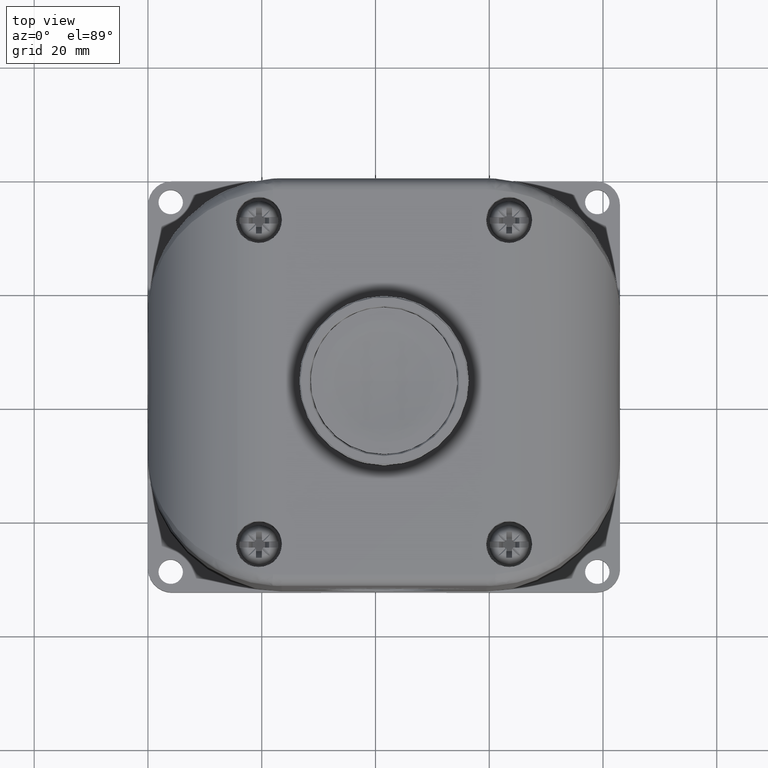
[diagram: clean part render]
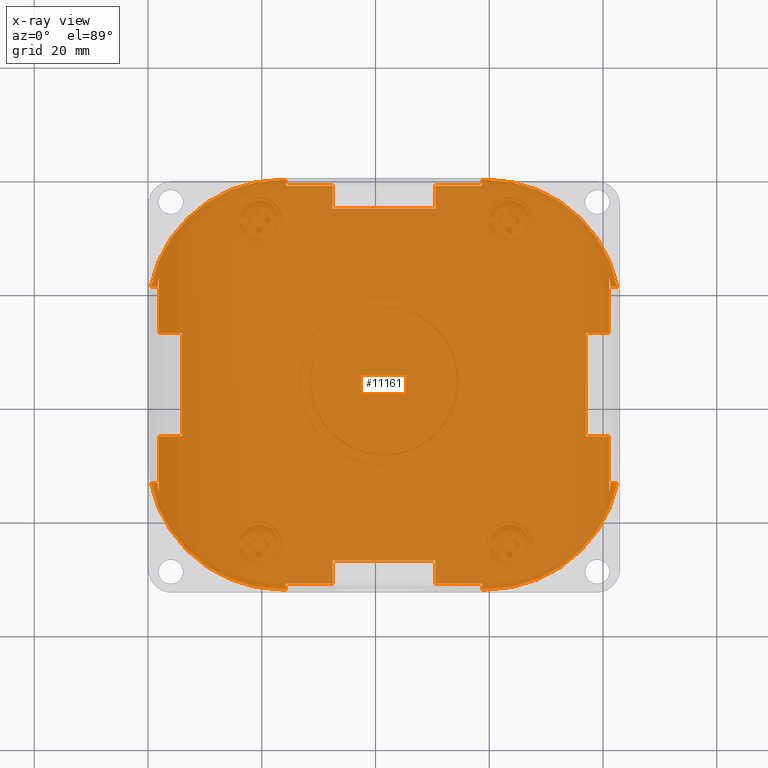
[diagram: x-ray — body ghosted, one internal face saturated and labeled with its STEP entity id]
A machine part, top view, then the same camera in x-ray: the body is ghosted and one INTERNAL B-rep face — a face not visible from any outside direction — is saturated and labeled: STEP entity #11161.
In plain terms, the highlighted planar face has unit normal (0, 0, 1).
Its self-contained STEP definition (entity closure, byte-faithful):
#6 = EDGE_CURVE ( 'NONE', #211, #3271, #20246, .T. ) ;
#34 = VERTEX_POINT ( 'NONE', #15999 ) ;
#104 = EDGE_CURVE ( 'NONE', #22496, #21848, #7697, .T. ) ;
#163 = DIRECTION ( 'NONE',  ( -1.000000000000000000, -0.000000000000000000, 0.000000000000000000 ) ) ;
#211 = VERTEX_POINT ( 'NONE', #21860 ) ;
#448 = DIRECTION ( 'NONE',  ( 1.000000000000000000, -0.000000000000000000, 2.265761274745220142E-15 ) ) ;
#501 = CARTESIAN_POINT ( 'NONE',  ( 1.276999395476385413, 0.008294289568677525037, 0.9960629921259841479 ) ) ;
#596 = VECTOR ( 'NONE', #12725, 39.37007874015748143 ) ;
#646 = ORIENTED_EDGE ( 'NONE', *, *, #22497, .F. ) ;
#675 = LINE ( 'NONE', #11176, #21525 ) ;
#690 = LINE ( 'NONE', #13894, #19188 ) ;
#722 = ORIENTED_EDGE ( 'NONE', *, *, #9861, .T. ) ;
#752 = DIRECTION ( 'NONE',  ( 0.000000000000000000, 1.000000000000000000, 0.000000000000000000 ) ) ;
#859 = ORIENTED_EDGE ( 'NONE', *, *, #1602, .F. ) ;
#886 = CARTESIAN_POINT ( 'NONE',  ( 2.313399968831224562, -2.404560126622364624, 0.9960629921259841479 ) ) ;
#926 = DIRECTION ( 'NONE',  ( 1.000000000000000000, 0.000000000000000000, -0.000000000000000000 ) ) ;
#1375 = VERTEX_POINT ( 'NONE', #13000 ) ;
#1533 = LINE ( 'NONE', #7021, #596 ) ;
#1602 = EDGE_CURVE ( 'NONE', #3912, #10276, #6064, .T. ) ;
#1618 = CARTESIAN_POINT ( 'NONE',  ( 3.191871686016665599, -0.7016700961253963253, 0.9960629921259841479 ) ) ;
#1721 = CARTESIAN_POINT ( 'NONE',  ( 3.200787401574803237, -1.423117759614849209, 0.9960629921259841479 ) ) ;
#1853 = DIRECTION ( 'NONE',  ( -1.000000000000000000, -0.000000000000000000, 0.000000000000000000 ) ) ;
#2110 = ORIENTED_EDGE ( 'NONE', *, *, #11650, .F. ) ;
#2194 = ORIENTED_EDGE ( 'NONE', *, *, #7425, .F. ) ;
#2196 = CARTESIAN_POINT ( 'NONE',  ( 0.01918108836124199357, -0.7435760585001599532, 0.9960629921259841479 ) ) ;
#2286 = CARTESIAN_POINT ( 'NONE',  ( 3.031496062992127261, -1.779976631854993441, 0.9960629921259841479 ) ) ;
#2308 = CARTESIAN_POINT ( 'NONE',  ( 2.342519685039369914, -0.005794924969179654842, 0.9960629921259841479 ) ) ;
#2485 = EDGE_CURVE ( 'NONE', #22482, #7369, #9775, .T. ) ;
#2628 = ORIENTED_EDGE ( 'NONE', *, *, #15426, .F. ) ;
#2669 = ORIENTED_EDGE ( 'NONE', *, *, #6150, .F. ) ;
#2905 = VECTOR ( 'NONE', #163, 39.37007874015748143 ) ;
#2968 = ORIENTED_EDGE ( 'NONE', *, *, #13101, .T. ) ;
#3053 = CARTESIAN_POINT ( 'NONE',  ( 3.200787401574803237, -1.423117759614849209, 0.9960629921259841479 ) ) ;
#3134 = VERTEX_POINT ( 'NONE', #5136 ) ;
#3216 = CARTESIAN_POINT ( 'NONE',  ( 1.990717139956684090, -0.2046138226069759147, 0.9960629921259841479 ) ) ;
#3271 = VERTEX_POINT ( 'NONE', #14789 ) ;
#3324 = DIRECTION ( 'NONE',  ( 7.417671482642760352E-31, -7.417671482642762103E-31, 1.000000000000000000 ) ) ;
#3371 = CARTESIAN_POINT ( 'NONE',  ( -0.05166161498367354693, -1.066258887374704756, 0.9960629921259841479 ) ) ;
#3380 = CARTESIAN_POINT ( 'NONE',  ( 2.342519685039369914, -1.915243743866817727, 0.9960629921259841479 ) ) ;
#3393 = VECTOR ( 'NONE', #5047, 39.37007874015748143 ) ;
#3494 = VERTEX_POINT ( 'NONE', #9751 ) ;
#3502 = CARTESIAN_POINT ( 'NONE',  ( 2.342519685039369914, -0.9309917753628805803, 0.9960629921259841479 ) ) ;
#3587 = VERTEX_POINT ( 'NONE', #11775 ) ;
#3826 = CARTESIAN_POINT ( 'NONE',  ( 2.020044116535452350, -0.04564375819330684231, 0.9960629921259841479 ) ) ;
#3852 = ORIENTED_EDGE ( 'NONE', *, *, #104, .F. ) ;
#3912 = VERTEX_POINT ( 'NONE', #11518 ) ;
#3913 = CARTESIAN_POINT ( 'NONE',  ( 0.07584484941640488864, -1.066258887374704756, 0.9960629921259840369 ) ) ;
#3933 = LINE ( 'NONE', #14764, #13901 ) ;
#4067 = ORIENTED_EDGE ( 'NONE', *, *, #8771, .F. ) ;
#4170 = ORIENTED_EDGE ( 'NONE', *, *, #21313, .F. ) ;
#4252 = EDGE_CURVE ( 'NONE', #10276, #6736, #10365, .T. ) ;
#4335 = CARTESIAN_POINT ( 'NONE',  ( 3.191871686026317878, -2.166819274866170986, 0.9960629921260411024 ) ) ;
#4414 = VERTEX_POINT ( 'NONE', #7395 ) ;
#4525 = CARTESIAN_POINT ( 'NONE',  ( 0.9543165666018463833, -2.840440594260518647, 0.9960629921259841479 ) ) ;
#4634 = CARTESIAN_POINT ( 'NONE',  ( 3.248535447071828397, -0.7435760585001600642, 0.9960629921259841479 ) ) ;
#4681 = CARTESIAN_POINT ( 'NONE',  ( 3.197780527425256203, -0.6993652157853464946, 0.9960629921259841479 ) ) ;
#4697 = LINE ( 'NONE', #21153, #7950 ) ;
#4716 = DIRECTION ( 'NONE',  ( 5.276725402210818083E-16, -1.000000000000000000, 0.000000000000000000 ) ) ;
#4739 = DIRECTION ( 'NONE',  ( -1.000000000000000000, 0.000000000000000000, -2.265761274745220142E-15 ) ) ;
#4834 = FACE_OUTER_BOUND ( 'NONE', #22210, .T. ) ;
#4890 = VECTOR ( 'NONE', #21119, 39.37007874015748143 ) ;
#4941 = EDGE_CURVE ( 'NONE', #19081, #4414, #4697, .T. ) ;
#4953 = CARTESIAN_POINT ( 'NONE',  ( 2.313399968831224562, -0.005794924969179654842, 0.9960629921259841479 ) ) ;
#5047 = DIRECTION ( 'NONE',  ( -0.000000000000000000, -1.000000000000000000, 0.000000000000000000 ) ) ;
#5105 = LINE ( 'NONE', #19884, #17821 ) ;
#5110 = LINE ( 'NONE', #17191, #5915 ) ;
#5136 = CARTESIAN_POINT ( 'NONE',  ( 1.990717139956684534, -2.800648200788083741, 0.9960629921259841479 ) ) ;
#5148 = B_SPLINE_CURVE_WITH_KNOTS ( 'NONE', 3,
 ( #20663, #9706, #18406, #4335 ),
 .UNSPECIFIED., .F., .F.,
 ( 4, 4 ),
 ( 6.938893903907228378E-18, 0.001584340472095101347 ),
 .UNSPECIFIED. ) ;
#5197 = EDGE_CURVE ( 'NONE', #7867, #11774, #8670, .T. ) ;
#5201 = CIRCLE ( 'NONE', #6354, 0.9251968503937008093 ) ;
#5292 = ORIENTED_EDGE ( 'NONE', *, *, #8994, .F. ) ;
#5369 = DIRECTION ( 'NONE',  ( -0.000000000000000000, -0.000000000000000000, 1.000000000000000000 ) ) ;
#5421 = VERTEX_POINT ( 'NONE', #3913 ) ;
#5455 = ORIENTED_EDGE ( 'NONE', *, *, #12653, .T. ) ;
#5487 = B_SPLINE_CURVE_WITH_KNOTS ( 'NONE', 3,
 ( #17547, #4681, #17314, #8386 ),
 .UNSPECIFIED., .F., .F.,
 ( 4, 4 ),
 ( 6.938893903907228378E-18, 0.001584340929084234080 ),
 .UNSPECIFIED. ) ;
#5488 = VERTEX_POINT ( 'NONE', #16647 ) ;
#5491 = DIRECTION ( 'NONE',  ( -1.000000000000000000, -1.771632486103973270E-15, 0.000000000000000000 ) ) ;
#5497 = CARTESIAN_POINT ( 'NONE',  ( 0.06692913385826800010, -1.423117759614849209, 0.9960629921259841479 ) ) ;
#5656 = EDGE_CURVE ( 'NONE', #21848, #20176, #10199, .T. ) ;
#5773 = ORIENTED_EDGE ( 'NONE', *, *, #7992, .F. ) ;
#5915 = VECTOR ( 'NONE', #8696, 39.37007874015748143 ) ;
#6064 = CIRCLE ( 'NONE', #20516, 0.9251968503937009203 ) ;
#6150 = EDGE_CURVE ( 'NONE', #10801, #8170, #15897, .T. ) ;
#6188 = LINE ( 'NONE', #9752, #15939 ) ;
#6332 = VERTEX_POINT ( 'NONE', #2196 ) ;
#6353 = CARTESIAN_POINT ( 'NONE',  ( 3.267716535433071279, -2.102659460729538132, 0.9960629921259841479 ) ) ;
#6354 = AXIS2_PLACEMENT_3D ( 'NONE', #17988, #5369, #5491 ) ;
#6384 = VECTOR ( 'NONE', #4716, 39.37007874015748143 ) ;
#6454 = DIRECTION ( 'NONE',  ( 0.000000000000000000, -1.000000000000000000, 0.000000000000000000 ) ) ;
#6465 = LINE ( 'NONE', #13712, #8932 ) ;
#6512 = VERTEX_POINT ( 'NONE', #8149 ) ;
#6528 = PLANE ( 'NONE',  #20345 ) ;
#6593 = LINE ( 'NONE', #11940, #14269 ) ;
#6668 = VERTEX_POINT ( 'NONE', #2286 ) ;
#6718 = LINE ( 'NONE', #886, #17954 ) ;
#6736 = VERTEX_POINT ( 'NONE', #4525 ) ;
#6864 = CARTESIAN_POINT ( 'NONE',  ( 1.276999395476385857, -0.2046138226069763311, 0.9960629921259841479 ) ) ;
#6888 = CARTESIAN_POINT ( 'NONE',  ( 2.020411243321577732, -2.800643007057055822, 0.9960629921259841479 ) ) ;
#7021 = CARTESIAN_POINT ( 'NONE',  ( 1.276999395476386301, -2.854529808798376589, 0.9960629921259841479 ) ) ;
#7037 = ORIENTED_EDGE ( 'NONE', *, *, #19399, .F. ) ;
#7074 = LINE ( 'NONE', #3371, #15612 ) ;
#7308 = EDGE_CURVE ( 'NONE', #8170, #18192, #5148, .T. ) ;
#7369 = VERTEX_POINT ( 'NONE', #19217 ) ;
#7395 = CARTESIAN_POINT ( 'NONE',  ( 1.990717139956683646, -0.04564375819330684231, 0.9960629921259841479 ) ) ;
#7425 = EDGE_CURVE ( 'NONE', #20176, #12188, #6718, .T. ) ;
#7508 = VECTOR ( 'NONE', #22300, 39.37007874015748143 ) ;
#7697 = CIRCLE ( 'NONE', #20992, 0.9251968503937011423 ) ;
#7867 = VERTEX_POINT ( 'NONE', #23377 ) ;
#7887 = ORIENTED_EDGE ( 'NONE', *, *, #16052, .F. ) ;
#7913 = VERTEX_POINT ( 'NONE', #11330 ) ;
#7918 = ORIENTED_EDGE ( 'NONE', *, *, #9430, .T. ) ;
#7950 = VECTOR ( 'NONE', #10194, 39.37007874015748143 ) ;
#7992 = EDGE_CURVE ( 'NONE', #18147, #3494, #20013, .T. ) ;
#8113 = CARTESIAN_POINT ( 'NONE',  ( 3.200787401574803237, -2.102659460729538132, 0.9960629921259841479 ) ) ;
#8149 = CARTESIAN_POINT ( 'NONE',  ( 0.06692913385826800010, -0.7435760585001600642, 0.9960629921259841479 ) ) ;
#8170 = VERTEX_POINT ( 'NONE', #13196 ) ;
#8206 = VECTOR ( 'NONE', #21587, 39.37007874015748143 ) ;
#8220 = VECTOR ( 'NONE', #10039, 39.37007874015748143 ) ;
#8386 = CARTESIAN_POINT ( 'NONE',  ( 3.200787401574802793, -0.7409101436614397018, 0.9960629921259841479 ) ) ;
#8599 = EDGE_CURVE ( 'NONE', #4414, #12188, #16822, .T. ) ;
#8603 = CARTESIAN_POINT ( 'NONE',  ( 2.625236719564798094, -0.2046138226069755817, 0.9960629921259841479 ) ) ;
#8670 = LINE ( 'NONE', #6888, #11745 ) ;
#8695 = VECTOR ( 'NONE', #6454, 39.37007874015748143 ) ;
#8696 = DIRECTION ( 'NONE',  ( -0.000000000000000000, -1.000000000000000000, -0.000000000000000000 ) ) ;
#8750 = VERTEX_POINT ( 'NONE', #20756 ) ;
#8771 = EDGE_CURVE ( 'NONE', #18926, #211, #6465, .T. ) ;
#8932 = VECTOR ( 'NONE', #13943, 39.37007874015748143 ) ;
#8951 = EDGE_CURVE ( 'NONE', #34, #15988, #19366, .T. ) ;
#8955 = ORIENTED_EDGE ( 'NONE', *, *, #7308, .F. ) ;
#8980 = LINE ( 'NONE', #16116, #2905 ) ;
#8994 = EDGE_CURVE ( 'NONE', #9803, #9812, #21892, .T. ) ;
#9116 = VECTOR ( 'NONE', #4739, 39.37007874015748143 ) ;
#9174 = CARTESIAN_POINT ( 'NONE',  ( 0.06993590453620271430, -0.6993656175388723861, 0.9960629921259841479 ) ) ;
#9289 = CARTESIAN_POINT ( 'NONE',  ( 0.9543165666018463833, -2.800829475357971443, 0.9960629921259840369 ) ) ;
#9430 = EDGE_CURVE ( 'NONE', #5488, #6512, #20021, .T. ) ;
#9602 = CARTESIAN_POINT ( 'NONE',  ( 1.276999395476385413, -0.04564375819330684231, 0.9960629921259841479 ) ) ;
#9618 = CARTESIAN_POINT ( 'NONE',  ( 2.313399968831224562, -0.04564375819330684231, 0.9960629921259843700 ) ) ;
#9706 = CARTESIAN_POINT ( 'NONE',  ( 3.200787414731199654, -2.126131056599460667, 0.9960629921259841479 ) ) ;
#9746 = DIRECTION ( 'NONE',  ( 0.000000000000000000, 0.000000000000000000, 1.000000000000000000 ) ) ;
#9751 = CARTESIAN_POINT ( 'NONE',  ( 0.06692913385826800010, -2.102659460729538132, 0.9960629921259841479 ) ) ;
#9752 = CARTESIAN_POINT ( 'NONE',  ( 2.625236719564799426, -2.641621696622722837, 0.9960629921259841479 ) ) ;
#9775 = LINE ( 'NONE', #18826, #10615 ) ;
#9803 = VERTEX_POINT ( 'NONE', #21316 ) ;
#9812 = VERTEX_POINT ( 'NONE', #14514 ) ;
#9861 = EDGE_CURVE ( 'NONE', #7913, #7867, #1533, .T. ) ;
#10039 = DIRECTION ( 'NONE',  ( -1.000000000000000000, -0.000000000000000000, -0.000000000000000000 ) ) ;
#10107 = DIRECTION ( 'NONE',  ( 1.000000000000000000, -0.000000000000000000, -2.265761274745220142E-15 ) ) ;
#10134 = CARTESIAN_POINT ( 'NONE',  ( 0.07584489310691214237, -2.166819422409330897, 0.9960629919313432890 ) ) ;
#10194 = DIRECTION ( 'NONE',  ( -5.276725402210818083E-16, 1.000000000000000000, -0.000000000000000000 ) ) ;
#10199 = LINE ( 'NONE', #17452, #20875 ) ;
#10211 = CARTESIAN_POINT ( 'NONE',  ( 2.625236719564799426, -2.404560126622364624, 0.9960629921259841479 ) ) ;
#10276 = VERTEX_POINT ( 'NONE', #23417 ) ;
#10335 = EDGE_CURVE ( 'NONE', #5421, #8750, #13490, .T. ) ;
#10365 = LINE ( 'NONE', #17272, #12500 ) ;
#10372 = ORIENTED_EDGE ( 'NONE', *, *, #4252, .F. ) ;
#10383 = EDGE_CURVE ( 'NONE', #3271, #10801, #22680, .T. ) ;
#10459 = DIRECTION ( 'NONE',  ( -0.9999999847036268319, -0.0001749078221056235376, 0.000000000000000000 ) ) ;
#10588 = DIRECTION ( 'NONE',  ( 8.858162430519865364E-16, 1.000000000000000000, 0.000000000000000000 ) ) ;
#10615 = VECTOR ( 'NONE', #22880, 39.37007874015748143 ) ;
#10627 = VECTOR ( 'NONE', #10107, 39.37007874015748143 ) ;
#10726 = VECTOR ( 'NONE', #18577, 39.37007874015748143 ) ;
#10801 = VERTEX_POINT ( 'NONE', #8113 ) ;
#10844 = DIRECTION ( 'NONE',  ( -0.000000000000000000, 1.000000000000000000, -0.000000000000000000 ) ) ;
#10964 = CARTESIAN_POINT ( 'NONE',  ( 0.06692913385685726746, -0.7409102796260188528, 0.9960629919539645272 ) ) ;
#11100 = EDGE_CURVE ( 'NONE', #15988, #22496, #690, .T. ) ;
#11108 = CARTESIAN_POINT ( 'NONE',  ( 0.9543165666018463833, -0.04564375819330684231, 0.9960629921259843700 ) ) ;
#11161 = ADVANCED_FACE ( 'NONE', ( #4834 ), #6528, .F. ) ;
#11176 = CARTESIAN_POINT ( 'NONE',  ( 3.319378150416744777, -1.779976631854993663, 0.9960629921259841479 ) ) ;
#11209 = DIRECTION ( 'NONE',  ( -0.000000000000000000, 1.000000000000000000, 0.000000000000000000 ) ) ;
#11330 = CARTESIAN_POINT ( 'NONE',  ( 1.276999395476386301, -2.641621696622722837, 0.9960629921259841479 ) ) ;
#11450 = LINE ( 'NONE', #3826, #7508 ) ;
#11518 = CARTESIAN_POINT ( 'NONE',  ( 0.01918108836124199357, -2.102659460729538132, 0.9960629921259841479 ) ) ;
#11571 = CARTESIAN_POINT ( 'NONE',  ( 3.319378150416744777, -1.066258887374704756, 0.9960629921259841479 ) ) ;
#11635 = ORIENTED_EDGE ( 'NONE', *, *, #21900, .T. ) ;
#11650 = EDGE_CURVE ( 'NONE', #22103, #18926, #5110, .T. ) ;
#11677 = CARTESIAN_POINT ( 'NONE',  ( 3.191871642326158831, -0.6794160968203676321, 0.9960629919313434000 ) ) ;
#11684 = ORIENTED_EDGE ( 'NONE', *, *, #5656, .F. ) ;
#11701 = DIRECTION ( 'NONE',  ( -0.000000000000000000, 1.000000000000000000, -0.000000000000000000 ) ) ;
#11745 = VECTOR ( 'NONE', #10459, 39.37007874015748143 ) ;
#11774 = VERTEX_POINT ( 'NONE', #9289 ) ;
#11775 = CARTESIAN_POINT ( 'NONE',  ( 3.191871686016665599, -1.779976631854993663, 0.9960629921259840369 ) ) ;
#11940 = CARTESIAN_POINT ( 'NONE',  ( 0.07584484941640488864, -0.7016700961253963253, 0.9960629921259841479 ) ) ;
#12034 = CARTESIAN_POINT ( 'NONE',  ( 3.191871686016665599, -1.066258887374704978, 0.9960629921259841479 ) ) ;
#12036 = ORIENTED_EDGE ( 'NONE', *, *, #2485, .T. ) ;
#12188 = VERTEX_POINT ( 'NONE', #9618 ) ;
#12268 = CARTESIAN_POINT ( 'NONE',  ( 0.06993600800781483995, -2.146870303444351702, 0.9960629921259841479 ) ) ;
#12472 = ORIENTED_EDGE ( 'NONE', *, *, #19821, .T. ) ;
#12500 = VECTOR ( 'NONE', #13810, 39.37007874015748143 ) ;
#12577 = VECTOR ( 'NONE', #11701, 39.37007874015748143 ) ;
#12650 = LINE ( 'NONE', #20027, #19682 ) ;
#12653 = EDGE_CURVE ( 'NONE', #7369, #5421, #7074, .T. ) ;
#12725 = DIRECTION ( 'NONE',  ( 0.000000000000000000, -1.000000000000000000, 0.000000000000000000 ) ) ;
#12759 = EDGE_CURVE ( 'NONE', #3134, #19375, #13020, .T. ) ;
#12763 = ORIENTED_EDGE ( 'NONE', *, *, #17486, .F. ) ;
#12912 = ORIENTED_EDGE ( 'NONE', *, *, #10335, .T. ) ;
#13000 = CARTESIAN_POINT ( 'NONE',  ( 0.07584489310691214237, -2.166819422409330897, 0.9960629919313432890 ) ) ;
#13020 = LINE ( 'NONE', #13244, #12577 ) ;
#13093 = VERTEX_POINT ( 'NONE', #6864 ) ;
#13101 = EDGE_CURVE ( 'NONE', #16685, #22467, #17927, .T. ) ;
#13196 = CARTESIAN_POINT ( 'NONE',  ( 3.200787401576214553, -2.105325239603679233, 0.9960629919539645272 ) ) ;
#13244 = CARTESIAN_POINT ( 'NONE',  ( 1.990717139956684534, -2.854529808798376589, 0.9960629921259841479 ) ) ;
#13246 = DIRECTION ( 'NONE',  ( 1.000000000000000000, 0.000000000000000000, 0.000000000000000000 ) ) ;
#13490 = LINE ( 'NONE', #20766, #22682 ) ;
#13652 = DIRECTION ( 'NONE',  ( -1.000000000000000000, -0.000000000000000000, 0.000000000000000000 ) ) ;
#13712 = CARTESIAN_POINT ( 'NONE',  ( 2.625236719564799426, -2.840440594260518647, 0.9960629921259841479 ) ) ;
#13763 = CARTESIAN_POINT ( 'NONE',  ( 3.191871686026317878, -2.166819274866170986, 0.9960629921260411024 ) ) ;
#13810 = DIRECTION ( 'NONE',  ( 1.000000000000000000, 0.000000000000000000, -0.000000000000000000 ) ) ;
#13883 = VECTOR ( 'NONE', #1853, 39.37007874015748143 ) ;
#13894 = CARTESIAN_POINT ( 'NONE',  ( 3.267716535433071279, -0.7435760585001600642, 0.9960629921259841479 ) ) ;
#13901 = VECTOR ( 'NONE', #10844, 39.37007874015748143 ) ;
#13943 = DIRECTION ( 'NONE',  ( 1.000000000000000000, 0.000000000000000000, -0.000000000000000000 ) ) ;
#13958 = DIRECTION ( 'NONE',  ( 0.000000000000000000, 1.000000000000000000, 0.000000000000000000 ) ) ;
#13970 = DIRECTION ( 'NONE',  ( 0.000000000000000000, -1.000000000000000000, -0.000000000000000000 ) ) ;
#14111 = ORIENTED_EDGE ( 'NONE', *, *, #11100, .F. ) ;
#14269 = VECTOR ( 'NONE', #13958, 39.37007874015748143 ) ;
#14514 = CARTESIAN_POINT ( 'NONE',  ( 0.9251968503937001431, -0.005794924969179654842, 0.9960629921259841479 ) ) ;
#14584 = EDGE_CURVE ( 'NONE', #5488, #8750, #16480, .T. ) ;
#14644 = VECTOR ( 'NONE', #17944, 39.37007874015748143 ) ;
#14650 = CARTESIAN_POINT ( 'NONE',  ( 0.07584484940675272069, -0.6794162443635270998, 0.9960629921260411024 ) ) ;
#14764 = CARTESIAN_POINT ( 'NONE',  ( 0.9543165666018463833, -2.840440594260518647, 0.9960629921259840369 ) ) ;
#14789 = CARTESIAN_POINT ( 'NONE',  ( 3.248535447071828397, -2.102659460729538576, 0.9960629921259841479 ) ) ;
#15040 = CARTESIAN_POINT ( 'NONE',  ( 2.020044116535452350, -0.04564375819330684231, 0.9960629921259841479 ) ) ;
#15121 = ORIENTED_EDGE ( 'NONE', *, *, #22769, .T. ) ;
#15248 = LINE ( 'NONE', #11571, #9116 ) ;
#15343 = LINE ( 'NONE', #22747, #10627 ) ;
#15344 = ORIENTED_EDGE ( 'NONE', *, *, #8951, .F. ) ;
#15386 = ORIENTED_EDGE ( 'NONE', *, *, #10383, .F. ) ;
#15426 = EDGE_CURVE ( 'NONE', #21105, #9803, #20838, .T. ) ;
#15612 = VECTOR ( 'NONE', #21854, 39.37007874015748143 ) ;
#15740 = CARTESIAN_POINT ( 'NONE',  ( 3.031496062992127261, -1.066258887374705200, 0.9960629921259841479 ) ) ;
#15782 = VERTEX_POINT ( 'NONE', #15908 ) ;
#15897 = LINE ( 'NONE', #1721, #3393 ) ;
#15907 = DIRECTION ( 'NONE',  ( 0.000000000000000000, -1.000000000000000000, 0.000000000000000000 ) ) ;
#15908 = CARTESIAN_POINT ( 'NONE',  ( 0.07584484941640488864, -1.779976631854993663, 0.9960629921259841479 ) ) ;
#15939 = VECTOR ( 'NONE', #22058, 39.37007874015748143 ) ;
#15988 = VERTEX_POINT ( 'NONE', #19839 ) ;
#15999 = CARTESIAN_POINT ( 'NONE',  ( 3.200787401574802793, -0.7409101436614397018, 0.9960629921259841479 ) ) ;
#16052 = EDGE_CURVE ( 'NONE', #16685, #34, #5487, .T. ) ;
#16116 = CARTESIAN_POINT ( 'NONE',  ( 2.625236719564799426, -2.102659460729538132, 0.9960629921259841479 ) ) ;
#16267 = CARTESIAN_POINT ( 'NONE',  ( 2.625236719564799426, -0.005794924969179654842, 0.9960629921259841479 ) ) ;
#16340 = DIRECTION ( 'NONE',  ( -0.9999999847036268319, -0.0001749078221056235376, 0.000000000000000000 ) ) ;
#16480 = B_SPLINE_CURVE_WITH_KNOTS ( 'NONE', 3,
 ( #10964, #18219, #9174, #14650 ),
 .UNSPECIFIED., .F., .F.,
 ( 4, 4 ),
 ( 0.000000000000000000, 0.001584340472095098094 ),
 .UNSPECIFIED. ) ;
#16546 = DIRECTION ( 'NONE',  ( 0.000000000000000000, -1.000000000000000000, 0.000000000000000000 ) ) ;
#16647 = CARTESIAN_POINT ( 'NONE',  ( 0.06692913385685726746, -0.7409102796260188528, 0.9960629919539645272 ) ) ;
#16685 = VERTEX_POINT ( 'NONE', #11677 ) ;
#16754 = ORIENTED_EDGE ( 'NONE', *, *, #22542, .T. ) ;
#16792 = VERTEX_POINT ( 'NONE', #9602 ) ;
#16822 = LINE ( 'NONE', #15040, #22272 ) ;
#16901 = CARTESIAN_POINT ( 'NONE',  ( 0.9543165666018463833, -0.005794924969179654842, 0.9960629921259840369 ) ) ;
#17191 = CARTESIAN_POINT ( 'NONE',  ( 2.313399968831224562, -2.840440594260518647, 0.9960629921259841479 ) ) ;
#17226 = CARTESIAN_POINT ( 'NONE',  ( 0.06692913385826854133, -2.105325375568258828, 0.9960629921259841479 ) ) ;
#17272 = CARTESIAN_POINT ( 'NONE',  ( 2.625236719564799426, -2.840440594260518647, 0.9960629921259841479 ) ) ;
#17314 = CARTESIAN_POINT ( 'NONE',  ( 3.200787401577076086, -0.7201040539439121924, 0.9960629921259841479 ) ) ;
#17385 = CARTESIAN_POINT ( 'NONE',  ( 3.031496062992126372, -2.404560126622364624, 0.9960629921259841479 ) ) ;
#17452 = CARTESIAN_POINT ( 'NONE',  ( 2.625236719564799426, -0.005794924969179654842, 0.9960629921259841479 ) ) ;
#17471 = CARTESIAN_POINT ( 'NONE',  ( 0.000000000000000000, -0.7435760585001600642, 0.9960629921259841479 ) ) ;
#17486 = EDGE_CURVE ( 'NONE', #6736, #11774, #3933, .T. ) ;
#17547 = CARTESIAN_POINT ( 'NONE',  ( 3.191871642326158831, -0.6794160968203676321, 0.9960629919313434000 ) ) ;
#17577 = DIRECTION ( 'NONE',  ( -0.000000000000000000, -1.000000000000000000, 0.000000000000000000 ) ) ;
#17821 = VECTOR ( 'NONE', #16546, 39.37007874015748143 ) ;
#17886 = LINE ( 'NONE', #501, #6384 ) ;
#17927 = LINE ( 'NONE', #1618, #18272 ) ;
#17936 = EDGE_CURVE ( 'NONE', #6668, #3587, #675, .T. ) ;
#17944 = DIRECTION ( 'NONE',  ( 1.000000000000000000, -0.000000000000000000, -0.000000000000000000 ) ) ;
#17954 = VECTOR ( 'NONE', #13970, 39.37007874015748143 ) ;
#17974 = ORIENTED_EDGE ( 'NONE', *, *, #5197, .T. ) ;
#17988 = CARTESIAN_POINT ( 'NONE',  ( 0.9251968503937006982, -0.9309917753628805803, 0.9960629921259841479 ) ) ;
#18019 = DIRECTION ( 'NONE',  ( -0.000000000000000000, 0.000000000000000000, 1.000000000000000000 ) ) ;
#18031 = VECTOR ( 'NONE', #11209, 39.37007874015748143 ) ;
#18140 = DIRECTION ( 'NONE',  ( -1.000000000000000000, 0.000000000000000000, 0.000000000000000000 ) ) ;
#18147 = VERTEX_POINT ( 'NONE', #17226 ) ;
#18192 = VERTEX_POINT ( 'NONE', #13763 ) ;
#18219 = CARTESIAN_POINT ( 'NONE',  ( 0.06692912070187173601, -0.7201044626302380847, 0.9960629921259841479 ) ) ;
#18272 = VECTOR ( 'NONE', #15907, 39.37007874015748143 ) ;
#18348 = CARTESIAN_POINT ( 'NONE',  ( 0.06692913385826800010, -2.404560126622364624, 0.9960629921259841479 ) ) ;
#18406 = CARTESIAN_POINT ( 'NONE',  ( 3.197780630896867482, -2.146869901690826143, 0.9960629921259841479 ) ) ;
#18577 = DIRECTION ( 'NONE',  ( -0.000000000000000000, 1.000000000000000000, -0.000000000000000000 ) ) ;
#18736 = ORIENTED_EDGE ( 'NONE', *, *, #21069, .T. ) ;
#18826 = CARTESIAN_POINT ( 'NONE',  ( 0.2362204724409442680, -2.404560126622364624, 0.9960629921259841479 ) ) ;
#18926 = VERTEX_POINT ( 'NONE', #21094 ) ;
#18966 = ORIENTED_EDGE ( 'NONE', *, *, #8599, .T. ) ;
#19081 = VERTEX_POINT ( 'NONE', #3216 ) ;
#19177 = CARTESIAN_POINT ( 'NONE',  ( 0.06692913385826854133, -2.105325375568258828, 0.9960629921259841479 ) ) ;
#19188 = VECTOR ( 'NONE', #20821, 39.37007874015748143 ) ;
#19217 = CARTESIAN_POINT ( 'NONE',  ( 0.2362204724409442680, -1.066258887374705200, 0.9960629921259841479 ) ) ;
#19226 = ORIENTED_EDGE ( 'NONE', *, *, #14584, .F. ) ;
#19330 = CARTESIAN_POINT ( 'NONE',  ( 1.990717139956684534, -2.641621696622722837, 0.9960629921259841479 ) ) ;
#19366 = LINE ( 'NONE', #3053, #20730 ) ;
#19375 = VERTEX_POINT ( 'NONE', #19330 ) ;
#19380 = LINE ( 'NONE', #17471, #14644 ) ;
#19399 = EDGE_CURVE ( 'NONE', #3494, #3912, #8980, .T. ) ;
#19526 = ORIENTED_EDGE ( 'NONE', *, *, #19655, .F. ) ;
#19560 = ORIENTED_EDGE ( 'NONE', *, *, #22403, .T. ) ;
#19632 = CARTESIAN_POINT ( 'NONE',  ( 0.9251968503937006982, -1.915243743866817727, 0.9960629921259841479 ) ) ;
#19655 = EDGE_CURVE ( 'NONE', #9812, #6332, #5201, .T. ) ;
#19682 = VECTOR ( 'NONE', #16340, 39.37007874015748143 ) ;
#19787 = ORIENTED_EDGE ( 'NONE', *, *, #4941, .T. ) ;
#19821 = EDGE_CURVE ( 'NONE', #21105, #16792, #11450, .T. ) ;
#19839 = CARTESIAN_POINT ( 'NONE',  ( 3.200787401574803237, -0.7435760585001600642, 0.9960629921259841479 ) ) ;
#19884 = CARTESIAN_POINT ( 'NONE',  ( 3.191871686016665599, -0.7016700961253963253, 0.9960629921259841479 ) ) ;
#20011 = ORIENTED_EDGE ( 'NONE', *, *, #22883, .T. ) ;
#20013 = LINE ( 'NONE', #18348, #18031 ) ;
#20021 = LINE ( 'NONE', #5497, #8206 ) ;
#20027 = CARTESIAN_POINT ( 'NONE',  ( 2.020411243321577732, -2.800643007057055822, 0.9960629921259841479 ) ) ;
#20176 = VERTEX_POINT ( 'NONE', #4953 ) ;
#20246 = CIRCLE ( 'NONE', #20620, 0.9251968503937008093 ) ;
#20345 = AXIS2_PLACEMENT_3D ( 'NONE', #10211, #9746, #926 ) ;
#20433 = ORIENTED_EDGE ( 'NONE', *, *, #21138, .T. ) ;
#20516 = AXIS2_PLACEMENT_3D ( 'NONE', #19632, #3324, #10588 ) ;
#20560 = ORIENTED_EDGE ( 'NONE', *, *, #23074, .T. ) ;
#20620 = AXIS2_PLACEMENT_3D ( 'NONE', #3380, #23042, #18140 ) ;
#20663 = CARTESIAN_POINT ( 'NONE',  ( 3.200787401576214553, -2.105325239603679233, 0.9960629919539645272 ) ) ;
#20730 = VECTOR ( 'NONE', #17577, 39.37007874015748143 ) ;
#20756 = CARTESIAN_POINT ( 'NONE',  ( 0.07584484940675272069, -0.6794162443635270998, 0.9960629921260411024 ) ) ;
#20766 = CARTESIAN_POINT ( 'NONE',  ( 0.07584484941640488864, -0.7016700961253963253, 0.9960629921259841479 ) ) ;
#20821 = DIRECTION ( 'NONE',  ( 1.000000000000000000, -0.000000000000000000, -0.000000000000000000 ) ) ;
#20838 = LINE ( 'NONE', #16901, #10726 ) ;
#20857 = LINE ( 'NONE', #17385, #8695 ) ;
#20875 = VECTOR ( 'NONE', #13652, 39.37007874015748143 ) ;
#20883 = VERTEX_POINT ( 'NONE', #15740 ) ;
#20992 = AXIS2_PLACEMENT_3D ( 'NONE', #3502, #18019, #23533 ) ;
#21069 = EDGE_CURVE ( 'NONE', #22103, #3134, #12650, .T. ) ;
#21094 = CARTESIAN_POINT ( 'NONE',  ( 2.313399968831224562, -2.840440594260518647, 0.9960629921259841479 ) ) ;
#21105 = VERTEX_POINT ( 'NONE', #11108 ) ;
#21119 = DIRECTION ( 'NONE',  ( 1.000000000000000000, 5.276725402210818083E-16, -0.000000000000000000 ) ) ;
#21138 = EDGE_CURVE ( 'NONE', #16792, #13093, #17886, .T. ) ;
#21146 = ORIENTED_EDGE ( 'NONE', *, *, #23304, .T. ) ;
#21153 = CARTESIAN_POINT ( 'NONE',  ( 1.990717139956683646, 0.008294289568677797389, 0.9960629921259841479 ) ) ;
#21313 = EDGE_CURVE ( 'NONE', #6332, #6512, #19380, .T. ) ;
#21316 = CARTESIAN_POINT ( 'NONE',  ( 0.9543165666018463833, -0.005794924969179654842, 0.9960629921259841479 ) ) ;
#21356 = LINE ( 'NONE', #8603, #4890 ) ;
#21453 = ORIENTED_EDGE ( 'NONE', *, *, #6, .F. ) ;
#21525 = VECTOR ( 'NONE', #448, 39.37007874015748143 ) ;
#21587 = DIRECTION ( 'NONE',  ( -0.000000000000000000, -1.000000000000000000, 0.000000000000000000 ) ) ;
#21848 = VERTEX_POINT ( 'NONE', #2308 ) ;
#21854 = DIRECTION ( 'NONE',  ( -1.000000000000000000, 0.000000000000000000, 2.265761274745220142E-15 ) ) ;
#21860 = CARTESIAN_POINT ( 'NONE',  ( 2.342519685039370803, -2.840440594260518647, 0.9960629921259841479 ) ) ;
#21892 = LINE ( 'NONE', #16267, #13883 ) ;
#21900 = EDGE_CURVE ( 'NONE', #1375, #15782, #6593, .T. ) ;
#22058 = DIRECTION ( 'NONE',  ( -1.000000000000000000, 0.000000000000000000, 0.000000000000000000 ) ) ;
#22091 = CARTESIAN_POINT ( 'NONE',  ( 2.313399968831224562, -2.800591761036391514, 0.9960629921259843700 ) ) ;
#22103 = VERTEX_POINT ( 'NONE', #22091 ) ;
#22210 = EDGE_LOOP ( 'NONE', ( #12472, #20433, #20560, #19787, #18966, #2194, #11684, #3852, #14111, #15344, #7887, #2968, #21146, #19560, #23259, #16754, #8955, #2669, #15386, #21453, #4067, #2110, #18736, #23511, #15121, #722, #17974, #12763, #10372, #859, #7037, #5773, #646, #11635, #20011, #12036, #5455, #12912, #19226, #7918, #4170, #19526, #5292, #2628 ) ) ;
#22272 = VECTOR ( 'NONE', #13246, 39.37007874015748143 ) ;
#22300 = DIRECTION ( 'NONE',  ( 1.000000000000000000, 0.000000000000000000, 0.000000000000000000 ) ) ;
#22403 = EDGE_CURVE ( 'NONE', #20883, #6668, #20857, .T. ) ;
#22467 = VERTEX_POINT ( 'NONE', #12034 ) ;
#22482 = VERTEX_POINT ( 'NONE', #22775 ) ;
#22496 = VERTEX_POINT ( 'NONE', #4634 ) ;
#22497 = EDGE_CURVE ( 'NONE', #1375, #18147, #23497, .T. ) ;
#22542 = EDGE_CURVE ( 'NONE', #3587, #18192, #5105, .T. ) ;
#22680 = LINE ( 'NONE', #6353, #8220 ) ;
#22682 = VECTOR ( 'NONE', #752, 39.37007874015748143 ) ;
#22747 = CARTESIAN_POINT ( 'NONE',  ( -0.05166161498367354693, -1.779976631854993663, 0.9960629921259841479 ) ) ;
#22769 = EDGE_CURVE ( 'NONE', #19375, #7913, #6188, .T. ) ;
#22775 = CARTESIAN_POINT ( 'NONE',  ( 0.2362204724409442680, -1.779976631854993441, 0.9960629921259841479 ) ) ;
#22880 = DIRECTION ( 'NONE',  ( -0.000000000000000000, 1.000000000000000000, 0.000000000000000000 ) ) ;
#22883 = EDGE_CURVE ( 'NONE', #15782, #22482, #15343, .T. ) ;
#22995 = CARTESIAN_POINT ( 'NONE',  ( 0.06692913385599472131, -2.126131465285785893, 0.9960629921259840369 ) ) ;
#23042 = DIRECTION ( 'NONE',  ( 0.000000000000000000, -0.000000000000000000, 1.000000000000000000 ) ) ;
#23074 = EDGE_CURVE ( 'NONE', #13093, #19081, #21356, .T. ) ;
#23259 = ORIENTED_EDGE ( 'NONE', *, *, #17936, .T. ) ;
#23304 = EDGE_CURVE ( 'NONE', #22467, #20883, #15248, .T. ) ;
#23377 = CARTESIAN_POINT ( 'NONE',  ( 1.276999395476386301, -2.800773035606278327, 0.9960629921259841479 ) ) ;
#23417 = CARTESIAN_POINT ( 'NONE',  ( 0.9251968503937009203, -2.840440594260518647, 0.9960629921259841479 ) ) ;
#23497 = B_SPLINE_CURVE_WITH_KNOTS ( 'NONE', 3,
 ( #10134, #12268, #22995, #19177 ),
 .UNSPECIFIED., .F., .F.,
 ( 4, 4 ),
 ( 3.469446951953614189E-18, 0.001584340929084238417 ),
 .UNSPECIFIED. ) ;
#23511 = ORIENTED_EDGE ( 'NONE', *, *, #12759, .T. ) ;
#23533 = DIRECTION ( 'NONE',  ( -1.000000000000000000, 0.000000000000000000, 0.000000000000000000 ) ) ;